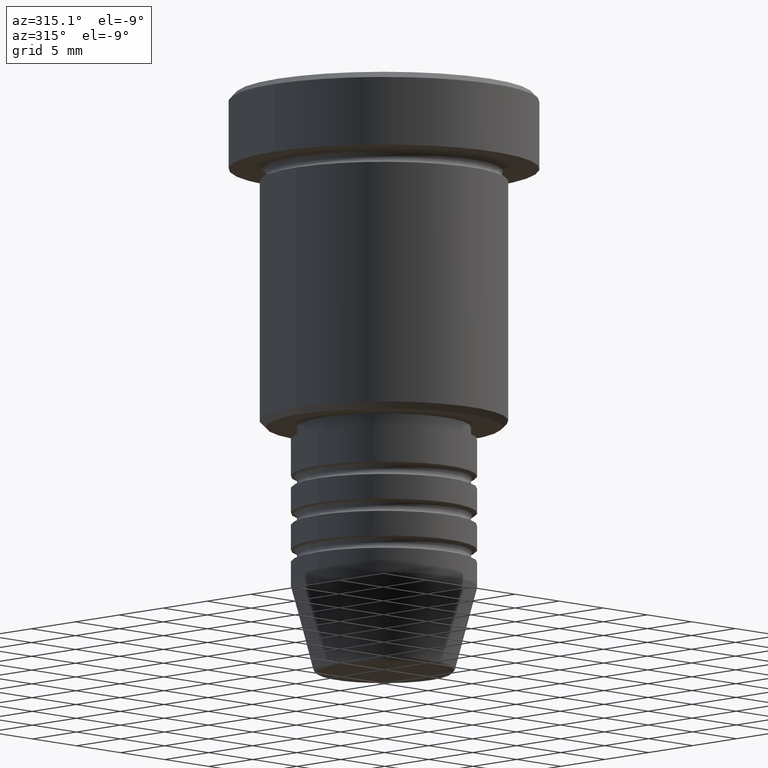
[diagram: clean part render]
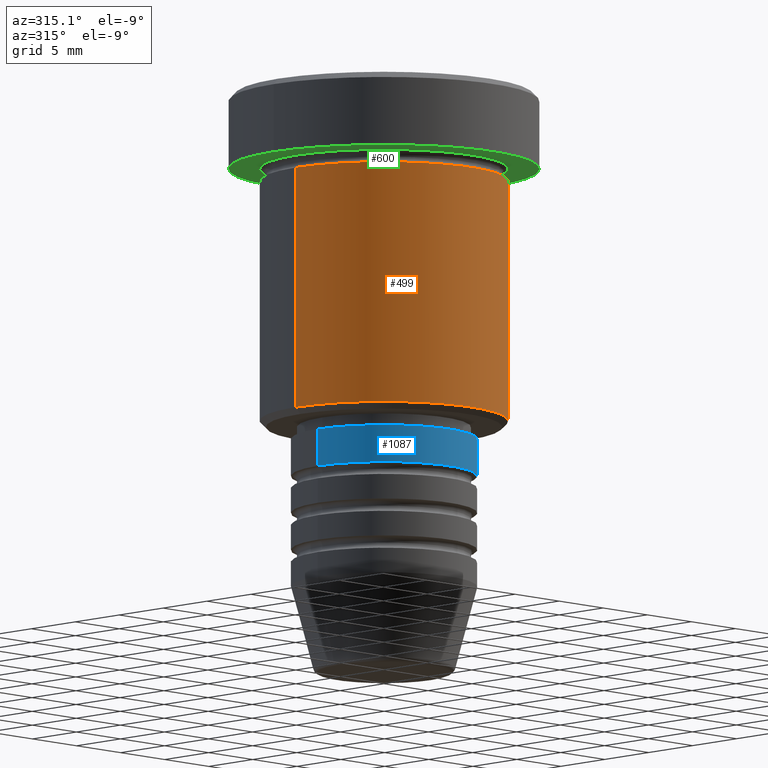
[diagram: same view with three faces highlighted in distinct colors, each labeled with its STEP entity id]
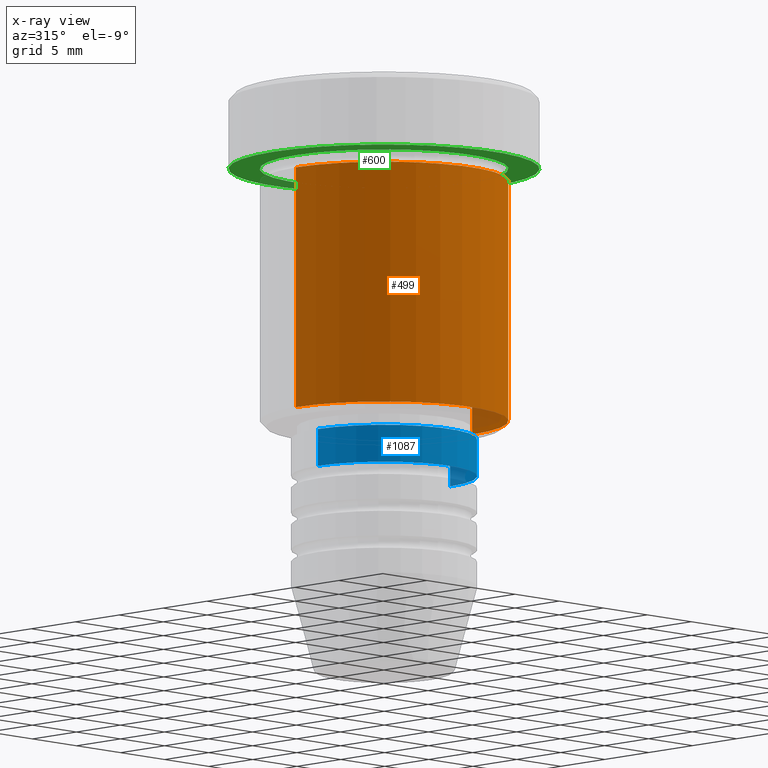
[diagram: x-ray of the same camera — body ghosted, the three highlighted faces saturated]
A machine part, auxiliary view with three faces highlighted in distinct colors.
The next image is the same camera in x-ray (body ghosted, the three faces saturated) — at least one of them is partly hidden behind the body in this view.
Their STEP definitions:

[orange] entity #499 — the highlighted cylindrical surface (partial cylindrical patch) has radius 10 mm, axis along (-0, -0, 1).
#1 = CARTESIAN_POINT ( 'NONE',  ( -10.00000000000000000, 1.224646799147353256E-15, -6.999999999999996447 ) ) ;
#121 = CARTESIAN_POINT ( 'NONE',  ( 10.00000000000000000, 0.000000000000000000, -6.999999999999996447 ) ) ;
#131 = EDGE_CURVE ( 'NONE', #196, #1174, #656, .T. ) ;
#146 = CARTESIAN_POINT ( 'NONE',  ( -10.00000000000000000, 1.224646799147353256E-15, 0.000000000000000000 ) ) ;
#196 = VERTEX_POINT ( 'NONE', #1 ) ;
#216 = EDGE_CURVE ( 'NONE', #914, #196, #659, .T. ) ;
#221 = CARTESIAN_POINT ( 'NONE',  ( 10.00000000000000000, 0.000000000000000000, -26.50000000000001421 ) ) ;
#268 = FACE_OUTER_BOUND ( 'NONE', #1158, .T. ) ;
#279 = AXIS2_PLACEMENT_3D ( 'NONE', #855, #324, #680 ) ;
#287 = EDGE_CURVE ( 'NONE', #914, #1118, #925, .T. ) ;
#324 = DIRECTION ( 'NONE',  ( -0.000000000000000000, -0.000000000000000000, 1.000000000000000000 ) ) ;
#328 = ORIENTED_EDGE ( 'NONE', *, *, #216, .F. ) ;
#352 = ORIENTED_EDGE ( 'NONE', *, *, #131, .F. ) ;
#400 = LINE ( 'NONE', #675, #833 ) ;
#412 = DIRECTION ( 'NONE',  ( -0.000000000000000000, -0.000000000000000000, 1.000000000000000000 ) ) ;
#449 = DIRECTION ( 'NONE',  ( -0.000000000000000000, -0.000000000000000000, 1.000000000000000000 ) ) ;
#472 = AXIS2_PLACEMENT_3D ( 'NONE', #918, #449, #628 ) ;
#499 = ADVANCED_FACE ( 'NONE', ( #268 ), #817, .T. ) ;
#529 = DIRECTION ( 'NONE',  ( -0.000000000000000000, -0.000000000000000000, 1.000000000000000000 ) ) ;
#628 = DIRECTION ( 'NONE',  ( 1.000000000000000000, 0.000000000000000000, 0.000000000000000000 ) ) ;
#630 = DIRECTION ( 'NONE',  ( -0.000000000000000000, -0.000000000000000000, 1.000000000000000000 ) ) ;
#656 = CIRCLE ( 'NONE', #977, 10.00000000000000000 ) ;
#659 = LINE ( 'NONE', #146, #1172 ) ;
#662 = CARTESIAN_POINT ( 'NONE',  ( -10.00000000000000000, 1.224646799147353256E-15, -26.50000000000001421 ) ) ;
#675 = CARTESIAN_POINT ( 'NONE',  ( 10.00000000000000000, 0.000000000000000000, 0.000000000000000000 ) ) ;
#680 = DIRECTION ( 'NONE',  ( -1.000000000000000000, 0.000000000000000000, 0.000000000000000000 ) ) ;
#796 = ORIENTED_EDGE ( 'NONE', *, *, #287, .T. ) ;
#817 = CYLINDRICAL_SURFACE ( 'NONE', #472, 10.00000000000000000 ) ;
#833 = VECTOR ( 'NONE', #412, 1000.000000000000000 ) ;
#855 = CARTESIAN_POINT ( 'NONE',  ( 0.000000000000000000, 0.000000000000000000, -26.50000000000001421 ) ) ;
#914 = VERTEX_POINT ( 'NONE', #662 ) ;
#918 = CARTESIAN_POINT ( 'NONE',  ( 0.000000000000000000, 0.000000000000000000, 0.000000000000000000 ) ) ;
#925 = CIRCLE ( 'NONE', #279, 10.00000000000000000 ) ;
#932 = DIRECTION ( 'NONE',  ( 1.000000000000000000, 0.000000000000000000, 0.000000000000000000 ) ) ;
#953 = ORIENTED_EDGE ( 'NONE', *, *, #1099, .T. ) ;
#977 = AXIS2_PLACEMENT_3D ( 'NONE', #1016, #630, #932 ) ;
#1016 = CARTESIAN_POINT ( 'NONE',  ( 0.000000000000000000, 0.000000000000000000, -6.999999999999996447 ) ) ;
#1099 = EDGE_CURVE ( 'NONE', #1118, #1174, #400, .T. ) ;
#1118 = VERTEX_POINT ( 'NONE', #221 ) ;
#1158 = EDGE_LOOP ( 'NONE', ( #328, #796, #953, #352 ) ) ;
#1172 = VECTOR ( 'NONE', #529, 1000.000000000000000 ) ;
#1174 = VERTEX_POINT ( 'NONE', #121 ) ;

[blue] entity #1087 — the highlighted cylindrical surface (partial cylindrical patch) has radius 7.5 mm, axis along (-0, -0, 1).
#60 = DIRECTION ( 'NONE',  ( -0.000000000000000000, -0.000000000000000000, 1.000000000000000000 ) ) ;
#84 = CIRCLE ( 'NONE', #569, 7.500000000000000000 ) ;
#100 = CARTESIAN_POINT ( 'NONE',  ( 7.500000000000000000, 0.000000000000000000, 0.000000000000000000 ) ) ;
#108 = AXIS2_PLACEMENT_3D ( 'NONE', #1166, #60, #440 ) ;
#159 = ORIENTED_EDGE ( 'NONE', *, *, #343, .F. ) ;
#170 = ORIENTED_EDGE ( 'NONE', *, *, #773, .F. ) ;
#188 = CARTESIAN_POINT ( 'NONE',  ( -7.500000000000000000, 9.184850993605147944E-16, -30.99999999999997868 ) ) ;
#304 = EDGE_CURVE ( 'NONE', #433, #849, #84, .T. ) ;
#305 = ORIENTED_EDGE ( 'NONE', *, *, #304, .T. ) ;
#343 = EDGE_CURVE ( 'NONE', #433, #517, #606, .T. ) ;
#417 = DIRECTION ( 'NONE',  ( -0.000000000000000000, -0.000000000000000000, 1.000000000000000000 ) ) ;
#433 = VERTEX_POINT ( 'NONE', #188 ) ;
#440 = DIRECTION ( 'NONE',  ( 1.000000000000000000, 0.000000000000000000, 0.000000000000000000 ) ) ;
#452 = VERTEX_POINT ( 'NONE', #995 ) ;
#456 = EDGE_LOOP ( 'NONE', ( #159, #305, #1167, #170 ) ) ;
#517 = VERTEX_POINT ( 'NONE', #984 ) ;
#569 = AXIS2_PLACEMENT_3D ( 'NONE', #1065, #775, #962 ) ;
#577 = EDGE_CURVE ( 'NONE', #849, #452, #809, .T. ) ;
#592 = FACE_OUTER_BOUND ( 'NONE', #456, .T. ) ;
#606 = LINE ( 'NONE', #769, #1147 ) ;
#625 = CARTESIAN_POINT ( 'NONE',  ( 7.500000000000000000, 0.000000000000000000, -30.99999999999997868 ) ) ;
#660 = CIRCLE ( 'NONE', #108, 7.500000000000000000 ) ;
#757 = DIRECTION ( 'NONE',  ( 1.000000000000000000, 0.000000000000000000, 0.000000000000000000 ) ) ;
#769 = CARTESIAN_POINT ( 'NONE',  ( -7.500000000000000000, 9.184850993605147944E-16, 0.000000000000000000 ) ) ;
#773 = EDGE_CURVE ( 'NONE', #517, #452, #660, .T. ) ;
#775 = DIRECTION ( 'NONE',  ( -0.000000000000000000, -0.000000000000000000, 1.000000000000000000 ) ) ;
#809 = LINE ( 'NONE', #100, #864 ) ;
#849 = VERTEX_POINT ( 'NONE', #625 ) ;
#864 = VECTOR ( 'NONE', #1102, 1000.000000000000000 ) ;
#945 = AXIS2_PLACEMENT_3D ( 'NONE', #1045, #1122, #757 ) ;
#952 = CYLINDRICAL_SURFACE ( 'NONE', #945, 7.500000000000000000 ) ;
#962 = DIRECTION ( 'NONE',  ( 1.000000000000000000, 0.000000000000000000, 0.000000000000000000 ) ) ;
#984 = CARTESIAN_POINT ( 'NONE',  ( -7.500000000000000000, 9.184850993605147944E-16, -28.00000000000000355 ) ) ;
#995 = CARTESIAN_POINT ( 'NONE',  ( 7.500000000000000000, 0.000000000000000000, -28.00000000000000355 ) ) ;
#1045 = CARTESIAN_POINT ( 'NONE',  ( 0.000000000000000000, 0.000000000000000000, 0.000000000000000000 ) ) ;
#1065 = CARTESIAN_POINT ( 'NONE',  ( 0.000000000000000000, 0.000000000000000000, -30.99999999999997868 ) ) ;
#1087 = ADVANCED_FACE ( 'NONE', ( #592 ), #952, .T. ) ;
#1102 = DIRECTION ( 'NONE',  ( -0.000000000000000000, -0.000000000000000000, 1.000000000000000000 ) ) ;
#1122 = DIRECTION ( 'NONE',  ( -0.000000000000000000, -0.000000000000000000, 1.000000000000000000 ) ) ;
#1147 = VECTOR ( 'NONE', #417, 1000.000000000000000 ) ;
#1166 = CARTESIAN_POINT ( 'NONE',  ( 0.000000000000000000, 0.000000000000000000, -28.00000000000000355 ) ) ;
#1167 = ORIENTED_EDGE ( 'NONE', *, *, #577, .T. ) ;

[green] entity #600 — the highlighted planar face has unit normal (0, 0, -1).
#11 = CIRCLE ( 'NONE', #200, 10.00000000000000000 ) ;
#80 = EDGE_CURVE ( 'NONE', #331, #354, #312, .T. ) ;
#88 = VERTEX_POINT ( 'NONE', #191 ) ;
#91 = DIRECTION ( 'NONE',  ( -0.000000000000000000, -0.000000000000000000, 1.000000000000000000 ) ) ;
#113 = EDGE_LOOP ( 'NONE', ( #116, #342 ) ) ;
#116 = ORIENTED_EDGE ( 'NONE', *, *, #274, .F. ) ;
#140 = CARTESIAN_POINT ( 'NONE',  ( 12.50000000000000000, 0.000000000000000000, -5.999999999999996447 ) ) ;
#191 = CARTESIAN_POINT ( 'NONE',  ( 10.00000000000000000, 1.224646799147353256E-15, -5.999999999999996447 ) ) ;
#200 = AXIS2_PLACEMENT_3D ( 'NONE', #791, #348, #504 ) ;
#213 = CARTESIAN_POINT ( 'NONE',  ( -10.00000000000000000, 0.000000000000000000, -5.999999999999996447 ) ) ;
#245 = DIRECTION ( 'NONE',  ( -0.000000000000000000, -0.000000000000000000, 1.000000000000000000 ) ) ;
#253 = EDGE_CURVE ( 'NONE', #88, #1109, #296, .T. ) ;
#274 = EDGE_CURVE ( 'NONE', #354, #331, #905, .T. ) ;
#296 = CIRCLE ( 'NONE', #404, 10.00000000000000000 ) ;
#301 = FACE_BOUND ( 'NONE', #959, .T. ) ;
#312 = CIRCLE ( 'NONE', #998, 12.50000000000000000 ) ;
#331 = VERTEX_POINT ( 'NONE', #340 ) ;
#340 = CARTESIAN_POINT ( 'NONE',  ( -12.50000000000000000, 1.530808498934191521E-15, -5.999999999999996447 ) ) ;
#342 = ORIENTED_EDGE ( 'NONE', *, *, #80, .F. ) ;
#348 = DIRECTION ( 'NONE',  ( -0.000000000000000000, -0.000000000000000000, 1.000000000000000000 ) ) ;
#354 = VERTEX_POINT ( 'NONE', #140 ) ;
#356 = AXIS2_PLACEMENT_3D ( 'NONE', #1140, #245, #438 ) ;
#364 = ORIENTED_EDGE ( 'NONE', *, *, #426, .T. ) ;
#387 = CARTESIAN_POINT ( 'NONE',  ( 0.000000000000000000, 12.50000000000000000, -5.999999999999996447 ) ) ;
#404 = AXIS2_PLACEMENT_3D ( 'NONE', #521, #620, #983 ) ;
#426 = EDGE_CURVE ( 'NONE', #1109, #88, #11, .T. ) ;
#438 = DIRECTION ( 'NONE',  ( 1.000000000000000000, 0.000000000000000000, 0.000000000000000000 ) ) ;
#482 = DIRECTION ( 'NONE',  ( 0.000000000000000000, 0.000000000000000000, -1.000000000000000000 ) ) ;
#504 = DIRECTION ( 'NONE',  ( -1.000000000000000000, 0.000000000000000000, 0.000000000000000000 ) ) ;
#521 = CARTESIAN_POINT ( 'NONE',  ( 0.000000000000000000, 0.000000000000000000, -5.999999999999996447 ) ) ;
#580 = PLANE ( 'NONE',  #693 ) ;
#600 = ADVANCED_FACE ( 'NONE', ( #301, #927 ), #580, .T. ) ;
#620 = DIRECTION ( 'NONE',  ( -0.000000000000000000, -0.000000000000000000, 1.000000000000000000 ) ) ;
#693 = AXIS2_PLACEMENT_3D ( 'NONE', #387, #482, #1046 ) ;
#708 = ORIENTED_EDGE ( 'NONE', *, *, #253, .T. ) ;
#728 = DIRECTION ( 'NONE',  ( 1.000000000000000000, 0.000000000000000000, 0.000000000000000000 ) ) ;
#791 = CARTESIAN_POINT ( 'NONE',  ( 0.000000000000000000, 0.000000000000000000, -5.999999999999996447 ) ) ;
#905 = CIRCLE ( 'NONE', #356, 12.50000000000000000 ) ;
#927 = FACE_OUTER_BOUND ( 'NONE', #113, .T. ) ;
#959 = EDGE_LOOP ( 'NONE', ( #364, #708 ) ) ;
#983 = DIRECTION ( 'NONE',  ( -1.000000000000000000, 0.000000000000000000, 0.000000000000000000 ) ) ;
#998 = AXIS2_PLACEMENT_3D ( 'NONE', #1006, #91, #728 ) ;
#1006 = CARTESIAN_POINT ( 'NONE',  ( 0.000000000000000000, 0.000000000000000000, -5.999999999999996447 ) ) ;
#1046 = DIRECTION ( 'NONE',  ( -1.000000000000000000, 0.000000000000000000, -0.000000000000000000 ) ) ;
#1109 = VERTEX_POINT ( 'NONE', #213 ) ;
#1140 = CARTESIAN_POINT ( 'NONE',  ( 0.000000000000000000, 0.000000000000000000, -5.999999999999996447 ) ) ;